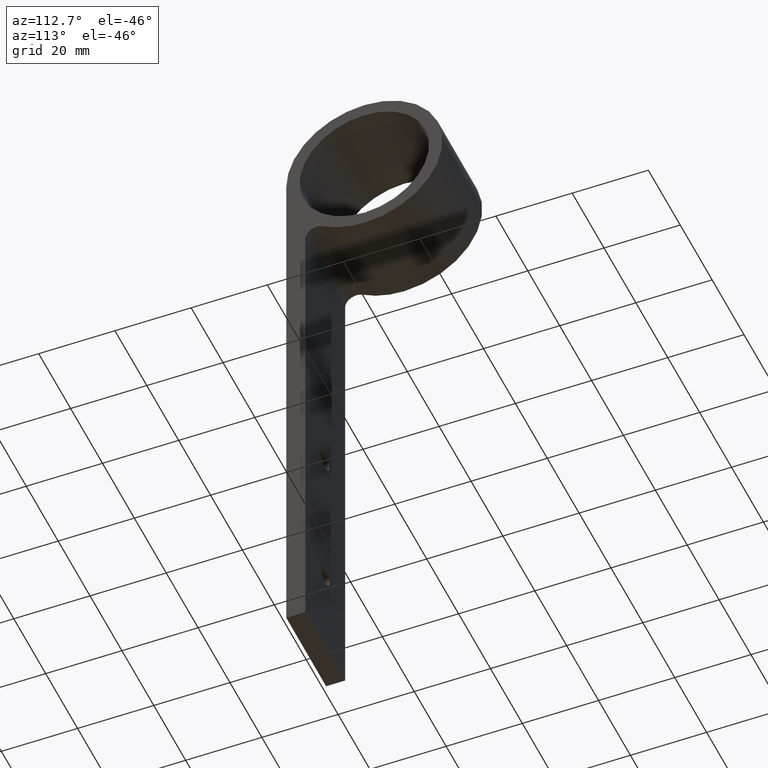
[diagram: clean part render]
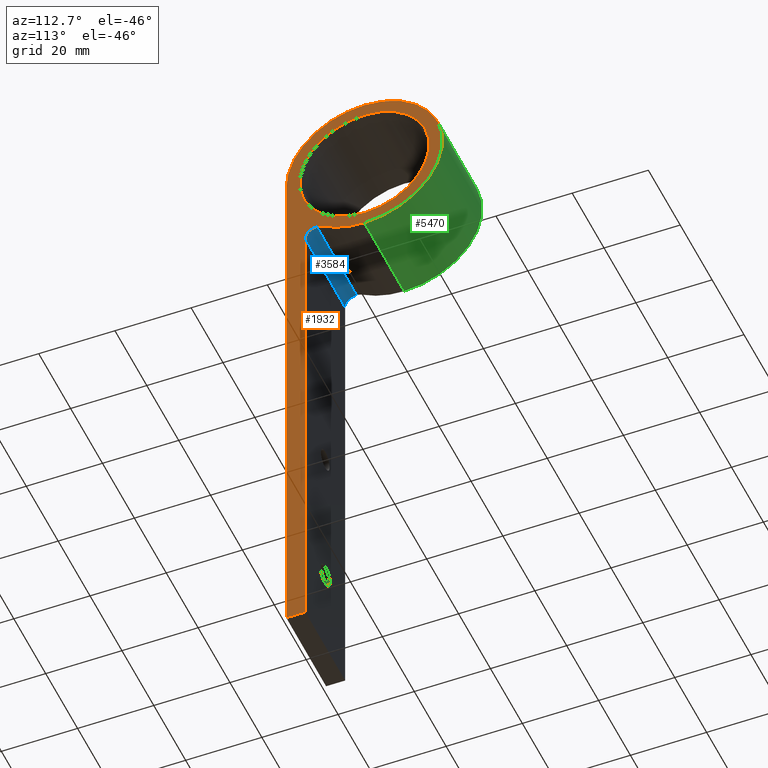
[diagram: same view with three faces highlighted in distinct colors, each labeled with its STEP entity id]
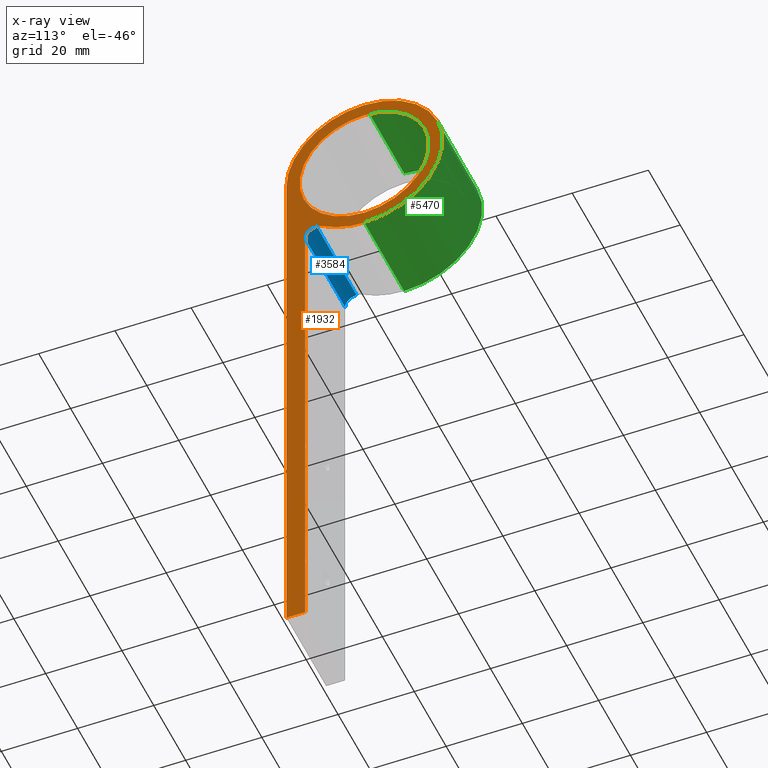
[diagram: x-ray of the same camera — body ghosted, the three highlighted faces saturated]
A machine part, auxiliary view with three faces highlighted in distinct colors.
The next image is the same camera in x-ray (body ghosted, the three faces saturated) — at least one of them is partly hidden behind the body in this view.
Their STEP definitions:

[orange] entity #1932 — the highlighted planar face has unit normal (1, 0, 0).
#128 = VERTEX_POINT ( 'NONE', #13256 ) ;
#351 = DIRECTION ( 'NONE',  ( 0.0000000000000000000, 0.0000000000000000000, -1.000000000000000000 ) ) ;
#499 = VERTEX_POINT ( 'NONE', #6555 ) ;
#559 = DIRECTION ( 'NONE',  ( -1.000000000000000000, -0.0000000000000000000, -0.0000000000000000000 ) ) ;
#744 = VERTEX_POINT ( 'NONE', #13972 ) ;
#1077 = CARTESIAN_POINT ( 'NONE',  ( 12.50000000000000000, 7.999999999999983100, -19.89974874213238500 ) ) ;
#1167 = DIRECTION ( 'NONE',  ( 1.000000000000000000, 0.0000000000000000000, 0.0000000000000000000 ) ) ;
#1657 = CARTESIAN_POINT ( 'NONE',  ( 12.50000000000000000, 5.000000000000000000, -150.0000000000000000 ) ) ;
#1807 = CIRCLE ( 'NONE', #5824, 17.00000000000000000 ) ;
#1916 = DIRECTION ( 'NONE',  ( 0.0000000000000000000, -1.333585990310819800E-016, 1.000000000000000000 ) ) ;
#1932 = ADVANCED_FACE ( 'NONE', ( #11601, #3766 ), #6696, .T. ) ;
#1936 = DIRECTION ( 'NONE',  ( 0.0000000000000000000, 0.0000000000000000000, -1.000000000000000000 ) ) ;
#1946 = VERTEX_POINT ( 'NONE', #14330 ) ;
#1971 = CIRCLE ( 'NONE', #4570, 2.999999999999999100 ) ;
#2083 = CIRCLE ( 'NONE', #3862, 17.00000000000000000 ) ;
#2171 = EDGE_LOOP ( 'NONE', ( #10936, #14257, #9193, #13356, #10824, #5709, #8654, #12324 ) ) ;
#2253 = CIRCLE ( 'NONE', #14168, 20.50000000000000000 ) ;
#2304 = CARTESIAN_POINT ( 'NONE',  ( 12.50000000000000000, 20.50000000000000400, -20.50000000000000000 ) ) ;
#2907 = EDGE_CURVE ( 'NONE', #1946, #5352, #2253, .T. ) ;
#2988 = CARTESIAN_POINT ( 'NONE',  ( 12.50000000000000000, 0.0000000000000000000, -150.0000000000000000 ) ) ;
#3586 = EDGE_CURVE ( 'NONE', #8309, #4413, #8272, .T. ) ;
#3736 = DIRECTION ( 'NONE',  ( 0.0000000000000000000, 0.0000000000000000000, -1.000000000000000000 ) ) ;
#3766 = FACE_BOUND ( 'NONE', #12884, .T. ) ;
#3862 = AXIS2_PLACEMENT_3D ( 'NONE', #9788, #5810, #3736 ) ;
#4056 = CARTESIAN_POINT ( 'NONE',  ( 12.50000000000000000, 5.000000000000000000, -150.0000000000000000 ) ) ;
#4069 = ORIENTED_EDGE ( 'NONE', *, *, #5066, .F. ) ;
#4271 = VERTEX_POINT ( 'NONE', #2988 ) ;
#4413 = VERTEX_POINT ( 'NONE', #4910 ) ;
#4473 = CARTESIAN_POINT ( 'NONE',  ( 12.50000000000000000, 20.50000000000000000, 0.0000000000000000000 ) ) ;
#4570 = AXIS2_PLACEMENT_3D ( 'NONE', #6102, #559, #13893 ) ;
#4739 = DIRECTION ( 'NONE',  ( -0.0000000000000000000, 1.000000000000000000, -0.0000000000000000000 ) ) ;
#4910 = CARTESIAN_POINT ( 'NONE',  ( 12.50000000000000000, 4.999999999999983100, -19.89974874213237800 ) ) ;
#5038 = DIRECTION ( 'NONE',  ( -0.0000000000000000000, -0.0000000000000000000, -1.000000000000000000 ) ) ;
#5066 = EDGE_CURVE ( 'NONE', #12587, #499, #1807, .T. ) ;
#5352 = VERTEX_POINT ( 'NONE', #12130 ) ;
#5403 = VERTEX_POINT ( 'NONE', #2304 ) ;
#5527 = CARTESIAN_POINT ( 'NONE',  ( 12.50000000000000000, 20.50000000000000000, 0.0000000000000000000 ) ) ;
#5559 = CARTESIAN_POINT ( 'NONE',  ( 12.50000000000000000, 20.50000000000000000, 0.0000000000000000000 ) ) ;
#5587 = DIRECTION ( 'NONE',  ( 0.0000000000000000000, 0.0000000000000000000, -1.000000000000000000 ) ) ;
#5588 = DIRECTION ( 'NONE',  ( 1.000000000000000000, 0.0000000000000000000, 0.0000000000000000000 ) ) ;
#5709 = ORIENTED_EDGE ( 'NONE', *, *, #5864, .T. ) ;
#5810 = DIRECTION ( 'NONE',  ( 1.000000000000000000, 0.0000000000000000000, 0.0000000000000000000 ) ) ;
#5824 = AXIS2_PLACEMENT_3D ( 'NONE', #5559, #8926, #11223 ) ;
#5842 = AXIS2_PLACEMENT_3D ( 'NONE', #1077, #11422, #351 ) ;
#5864 = EDGE_CURVE ( 'NONE', #5403, #1946, #8904, .T. ) ;
#5935 = AXIS2_PLACEMENT_3D ( 'NONE', #4473, #5588, #8908 ) ;
#6102 = CARTESIAN_POINT ( 'NONE',  ( 12.50000000000000000, 7.999999999999983100, -19.89974874213238500 ) ) ;
#6425 = EDGE_CURVE ( 'NONE', #5352, #4271, #6968, .T. ) ;
#6453 = EDGE_CURVE ( 'NONE', #128, #744, #1971, .T. ) ;
#6555 = CARTESIAN_POINT ( 'NONE',  ( 12.50000000000000000, 20.50000000000000400, -17.00000000000000000 ) ) ;
#6696 = PLANE ( 'NONE',  #10175 ) ;
#6756 = CARTESIAN_POINT ( 'NONE',  ( 12.50000000000000000, 20.50000000000000000, 0.0000000000000000000 ) ) ;
#6968 = LINE ( 'NONE', #8002, #13737 ) ;
#7621 = EDGE_CURVE ( 'NONE', #4413, #128, #10793, .T. ) ;
#7690 = EDGE_CURVE ( 'NONE', #4271, #8309, #11650, .T. ) ;
#7938 = VECTOR ( 'NONE', #1916, 1000.000000000000000 ) ;
#8002 = CARTESIAN_POINT ( 'NONE',  ( 12.50000000000000000, 0.0000000000000000000, -150.0000000000000000 ) ) ;
#8007 = VECTOR ( 'NONE', #4739, 1000.000000000000000 ) ;
#8028 = CARTESIAN_POINT ( 'NONE',  ( 12.50000000000000000, 5.000000000000000000, -150.0000000000000000 ) ) ;
#8148 = EDGE_CURVE ( 'NONE', #744, #5403, #13704, .T. ) ;
#8272 = LINE ( 'NONE', #4056, #7938 ) ;
#8309 = VERTEX_POINT ( 'NONE', #8028 ) ;
#8654 = ORIENTED_EDGE ( 'NONE', *, *, #2907, .T. ) ;
#8904 = CIRCLE ( 'NONE', #12290, 20.50000000000000000 ) ;
#8908 = DIRECTION ( 'NONE',  ( 0.0000000000000000000, 0.0000000000000000000, -1.000000000000000000 ) ) ;
#8926 = DIRECTION ( 'NONE',  ( 1.000000000000000000, 0.0000000000000000000, 0.0000000000000000000 ) ) ;
#9193 = ORIENTED_EDGE ( 'NONE', *, *, #7621, .T. ) ;
#9788 = CARTESIAN_POINT ( 'NONE',  ( 12.50000000000000000, 20.50000000000000000, 0.0000000000000000000 ) ) ;
#10175 = AXIS2_PLACEMENT_3D ( 'NONE', #5527, #1167, #11157 ) ;
#10793 = CIRCLE ( 'NONE', #5842, 2.999999999999999100 ) ;
#10795 = DIRECTION ( 'NONE',  ( 1.000000000000000000, 0.0000000000000000000, 0.0000000000000000000 ) ) ;
#10824 = ORIENTED_EDGE ( 'NONE', *, *, #8148, .T. ) ;
#10936 = ORIENTED_EDGE ( 'NONE', *, *, #7690, .T. ) ;
#11157 = DIRECTION ( 'NONE',  ( 0.0000000000000000000, 0.0000000000000000000, -1.000000000000000000 ) ) ;
#11223 = DIRECTION ( 'NONE',  ( 0.0000000000000000000, 0.0000000000000000000, -1.000000000000000000 ) ) ;
#11422 = DIRECTION ( 'NONE',  ( -1.000000000000000000, -0.0000000000000000000, -0.0000000000000000000 ) ) ;
#11505 = EDGE_CURVE ( 'NONE', #499, #12587, #2083, .T. ) ;
#11601 = FACE_OUTER_BOUND ( 'NONE', #2171, .T. ) ;
#11650 = LINE ( 'NONE', #1657, #8007 ) ;
#11846 = CARTESIAN_POINT ( 'NONE',  ( 12.50000000000000000, 20.50000000000000000, 17.00000000000000000 ) ) ;
#12130 = CARTESIAN_POINT ( 'NONE',  ( 12.50000000000000000, 0.0000000000000000000, 0.0000000000000000000 ) ) ;
#12268 = DIRECTION ( 'NONE',  ( 1.000000000000000000, 0.0000000000000000000, 0.0000000000000000000 ) ) ;
#12290 = AXIS2_PLACEMENT_3D ( 'NONE', #14273, #10795, #1936 ) ;
#12324 = ORIENTED_EDGE ( 'NONE', *, *, #6425, .T. ) ;
#12352 = ORIENTED_EDGE ( 'NONE', *, *, #11505, .F. ) ;
#12587 = VERTEX_POINT ( 'NONE', #11846 ) ;
#12884 = EDGE_LOOP ( 'NONE', ( #4069, #12352 ) ) ;
#13256 = CARTESIAN_POINT ( 'NONE',  ( 12.50000000000000000, 7.999999999999983100, -16.89974874213238500 ) ) ;
#13356 = ORIENTED_EDGE ( 'NONE', *, *, #6453, .T. ) ;
#13704 = CIRCLE ( 'NONE', #5935, 20.50000000000000000 ) ;
#13737 = VECTOR ( 'NONE', #5038, 1000.000000000000000 ) ;
#13893 = DIRECTION ( 'NONE',  ( 0.0000000000000000000, 0.0000000000000000000, -1.000000000000000000 ) ) ;
#13972 = CARTESIAN_POINT ( 'NONE',  ( 12.50000000000000000, 9.595744680851046500, -17.35935528568995400 ) ) ;
#14168 = AXIS2_PLACEMENT_3D ( 'NONE', #6756, #12268, #5587 ) ;
#14257 = ORIENTED_EDGE ( 'NONE', *, *, #3586, .T. ) ;
#14273 = CARTESIAN_POINT ( 'NONE',  ( 12.50000000000000000, 20.50000000000000000, 0.0000000000000000000 ) ) ;
#14330 = CARTESIAN_POINT ( 'NONE',  ( 12.50000000000000000, 20.50000000000000000, 20.50000000000000000 ) ) ;

[blue] entity #3584 — the highlighted cylindrical surface (edge-blend (fillet) strip) has radius 3 mm, axis along (-1, -0, -0).
#128 = VERTEX_POINT ( 'NONE', #13256 ) ;
#351 = DIRECTION ( 'NONE',  ( 0.0000000000000000000, 0.0000000000000000000, -1.000000000000000000 ) ) ;
#685 = VERTEX_POINT ( 'NONE', #10700 ) ;
#1035 = ORIENTED_EDGE ( 'NONE', *, *, #5228, .F. ) ;
#1077 = CARTESIAN_POINT ( 'NONE',  ( 12.50000000000000000, 7.999999999999983100, -19.89974874213238500 ) ) ;
#3152 = LINE ( 'NONE', #12881, #11520 ) ;
#3413 = LINE ( 'NONE', #9504, #5961 ) ;
#3584 = ADVANCED_FACE ( 'NONE', ( #6886 ), #4622, .F. ) ;
#3859 = CARTESIAN_POINT ( 'NONE',  ( -12.50000000000000000, 7.999999999999983100, -19.89974874213238500 ) ) ;
#4413 = VERTEX_POINT ( 'NONE', #4910 ) ;
#4622 = CYLINDRICAL_SURFACE ( 'NONE', #11172, 2.999999999999999100 ) ;
#4666 = VERTEX_POINT ( 'NONE', #7457 ) ;
#4910 = CARTESIAN_POINT ( 'NONE',  ( 12.50000000000000000, 4.999999999999983100, -19.89974874213237800 ) ) ;
#5127 = EDGE_CURVE ( 'NONE', #4666, #4413, #3152, .T. ) ;
#5228 = EDGE_CURVE ( 'NONE', #685, #4666, #12549, .T. ) ;
#5842 = AXIS2_PLACEMENT_3D ( 'NONE', #1077, #11422, #351 ) ;
#5961 = VECTOR ( 'NONE', #13970, 1000.000000000000000 ) ;
#6052 = DIRECTION ( 'NONE',  ( 1.000000000000000000, 0.0000000000000000000, 0.0000000000000000000 ) ) ;
#6886 = FACE_OUTER_BOUND ( 'NONE', #9554, .T. ) ;
#7123 = CARTESIAN_POINT ( 'NONE',  ( 12.50000000000000000, 7.999999999999983100, -19.89974874213238500 ) ) ;
#7242 = ORIENTED_EDGE ( 'NONE', *, *, #5127, .F. ) ;
#7295 = DIRECTION ( 'NONE',  ( 0.0000000000000000000, 0.0000000000000000000, -1.000000000000000000 ) ) ;
#7457 = CARTESIAN_POINT ( 'NONE',  ( -12.50000000000000000, 4.999999999999983100, -19.89974874213237800 ) ) ;
#7621 = EDGE_CURVE ( 'NONE', #4413, #128, #10793, .T. ) ;
#8000 = ORIENTED_EDGE ( 'NONE', *, *, #7621, .F. ) ;
#9107 = AXIS2_PLACEMENT_3D ( 'NONE', #3859, #9432, #7295 ) ;
#9432 = DIRECTION ( 'NONE',  ( 1.000000000000000000, 0.0000000000000000000, 0.0000000000000000000 ) ) ;
#9504 = CARTESIAN_POINT ( 'NONE',  ( 12.50000000000000000, 7.999999999999983100, -16.89974874213238500 ) ) ;
#9554 = EDGE_LOOP ( 'NONE', ( #13975, #8000, #7242, #1035 ) ) ;
#9591 = DIRECTION ( 'NONE',  ( -1.000000000000000000, -0.0000000000000000000, -0.0000000000000000000 ) ) ;
#10700 = CARTESIAN_POINT ( 'NONE',  ( -12.50000000000000000, 7.999999999999983100, -16.89974874213238500 ) ) ;
#10793 = CIRCLE ( 'NONE', #5842, 2.999999999999999100 ) ;
#11172 = AXIS2_PLACEMENT_3D ( 'NONE', #7123, #9591, #11796 ) ;
#11422 = DIRECTION ( 'NONE',  ( -1.000000000000000000, -0.0000000000000000000, -0.0000000000000000000 ) ) ;
#11520 = VECTOR ( 'NONE', #6052, 1000.000000000000000 ) ;
#11796 = DIRECTION ( 'NONE',  ( 0.0000000000000000000, 0.0000000000000000000, 1.000000000000000000 ) ) ;
#12549 = CIRCLE ( 'NONE', #9107, 2.999999999999999100 ) ;
#12877 = EDGE_CURVE ( 'NONE', #128, #685, #3413, .T. ) ;
#12881 = CARTESIAN_POINT ( 'NONE',  ( 12.50000000000000000, 4.999999999999983100, -19.89974874213238500 ) ) ;
#13256 = CARTESIAN_POINT ( 'NONE',  ( 12.50000000000000000, 7.999999999999983100, -16.89974874213238500 ) ) ;
#13970 = DIRECTION ( 'NONE',  ( -1.000000000000000000, -0.0000000000000000000, -0.0000000000000000000 ) ) ;
#13975 = ORIENTED_EDGE ( 'NONE', *, *, #12877, .F. ) ;

[green] entity #5470 — the highlighted cylindrical surface (partial cylindrical patch) has radius 20.5 mm, axis along (-1, -0, -0).
#547 = DIRECTION ( 'NONE',  ( 0.0000000000000000000, 0.0000000000000000000, 1.000000000000000000 ) ) ;
#1519 = ORIENTED_EDGE ( 'NONE', *, *, #7886, .T. ) ;
#1936 = DIRECTION ( 'NONE',  ( 0.0000000000000000000, 0.0000000000000000000, -1.000000000000000000 ) ) ;
#1946 = VERTEX_POINT ( 'NONE', #14330 ) ;
#2016 = DIRECTION ( 'NONE',  ( 1.000000000000000000, 0.0000000000000000000, 0.0000000000000000000 ) ) ;
#2304 = CARTESIAN_POINT ( 'NONE',  ( 12.50000000000000000, 20.50000000000000400, -20.50000000000000000 ) ) ;
#3085 = DIRECTION ( 'NONE',  ( 0.0000000000000000000, 0.0000000000000000000, -1.000000000000000000 ) ) ;
#3177 = CARTESIAN_POINT ( 'NONE',  ( -12.50000000000000000, 20.50000000000000000, 0.0000000000000000000 ) ) ;
#3303 = EDGE_CURVE ( 'NONE', #1946, #13035, #7583, .T. ) ;
#3358 = CARTESIAN_POINT ( 'NONE',  ( 12.50000000000000000, 20.50000000000000000, 20.50000000000000000 ) ) ;
#3479 = AXIS2_PLACEMENT_3D ( 'NONE', #3177, #2016, #3085 ) ;
#4166 = CIRCLE ( 'NONE', #3479, 20.50000000000000000 ) ;
#4285 = DIRECTION ( 'NONE',  ( -1.000000000000000000, -0.0000000000000000000, -0.0000000000000000000 ) ) ;
#4836 = CARTESIAN_POINT ( 'NONE',  ( -12.50000000000000000, 20.50000000000000400, -20.50000000000000000 ) ) ;
#5403 = VERTEX_POINT ( 'NONE', #2304 ) ;
#5470 = ADVANCED_FACE ( 'NONE', ( #8359 ), #11683, .T. ) ;
#5864 = EDGE_CURVE ( 'NONE', #5403, #1946, #8904, .T. ) ;
#6514 = VECTOR ( 'NONE', #13266, 1000.000000000000000 ) ;
#7542 = ORIENTED_EDGE ( 'NONE', *, *, #11402, .T. ) ;
#7583 = LINE ( 'NONE', #3358, #6514 ) ;
#7822 = AXIS2_PLACEMENT_3D ( 'NONE', #12510, #12317, #547 ) ;
#7886 = EDGE_CURVE ( 'NONE', #8835, #13035, #4166, .T. ) ;
#8359 = FACE_OUTER_BOUND ( 'NONE', #12201, .T. ) ;
#8835 = VERTEX_POINT ( 'NONE', #4836 ) ;
#8904 = CIRCLE ( 'NONE', #12290, 20.50000000000000000 ) ;
#9321 = LINE ( 'NONE', #11934, #10563 ) ;
#10563 = VECTOR ( 'NONE', #4285, 1000.000000000000000 ) ;
#10795 = DIRECTION ( 'NONE',  ( 1.000000000000000000, 0.0000000000000000000, 0.0000000000000000000 ) ) ;
#11402 = EDGE_CURVE ( 'NONE', #5403, #8835, #9321, .T. ) ;
#11683 = CYLINDRICAL_SURFACE ( 'NONE', #7822, 20.50000000000000000 ) ;
#11889 = ORIENTED_EDGE ( 'NONE', *, *, #3303, .F. ) ;
#11934 = CARTESIAN_POINT ( 'NONE',  ( 12.50000000000000000, 20.50000000000000400, -20.50000000000000000 ) ) ;
#12201 = EDGE_LOOP ( 'NONE', ( #13793, #7542, #1519, #11889 ) ) ;
#12290 = AXIS2_PLACEMENT_3D ( 'NONE', #14273, #10795, #1936 ) ;
#12317 = DIRECTION ( 'NONE',  ( -1.000000000000000000, -0.0000000000000000000, -0.0000000000000000000 ) ) ;
#12510 = CARTESIAN_POINT ( 'NONE',  ( 12.50000000000000000, 20.50000000000000000, 0.0000000000000000000 ) ) ;
#13035 = VERTEX_POINT ( 'NONE', #13172 ) ;
#13172 = CARTESIAN_POINT ( 'NONE',  ( -12.50000000000000000, 20.50000000000000000, 20.50000000000000000 ) ) ;
#13266 = DIRECTION ( 'NONE',  ( -1.000000000000000000, -0.0000000000000000000, -0.0000000000000000000 ) ) ;
#13793 = ORIENTED_EDGE ( 'NONE', *, *, #5864, .F. ) ;
#14273 = CARTESIAN_POINT ( 'NONE',  ( 12.50000000000000000, 20.50000000000000000, 0.0000000000000000000 ) ) ;
#14330 = CARTESIAN_POINT ( 'NONE',  ( 12.50000000000000000, 20.50000000000000000, 20.50000000000000000 ) ) ;